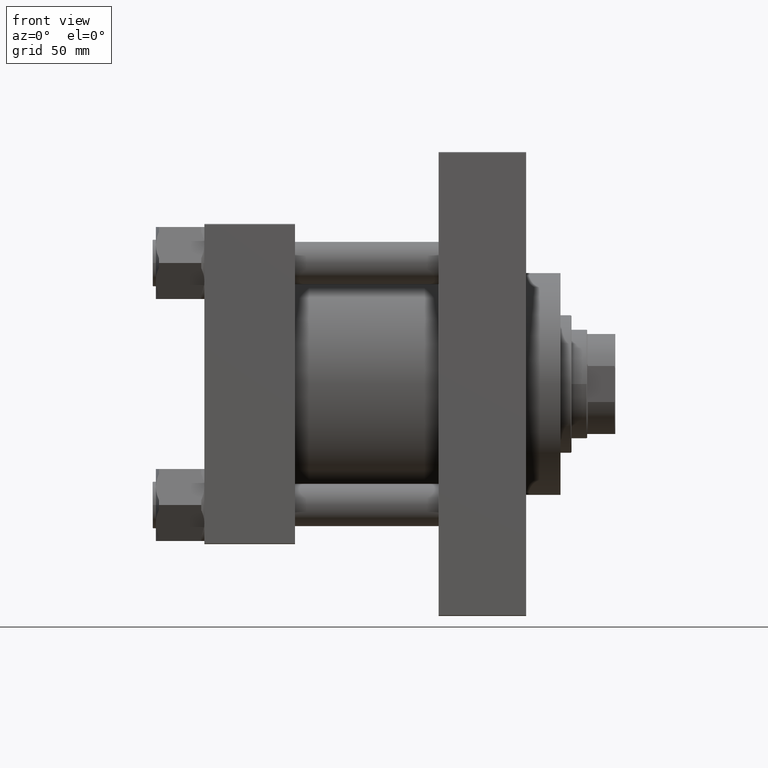
[diagram: clean part render]
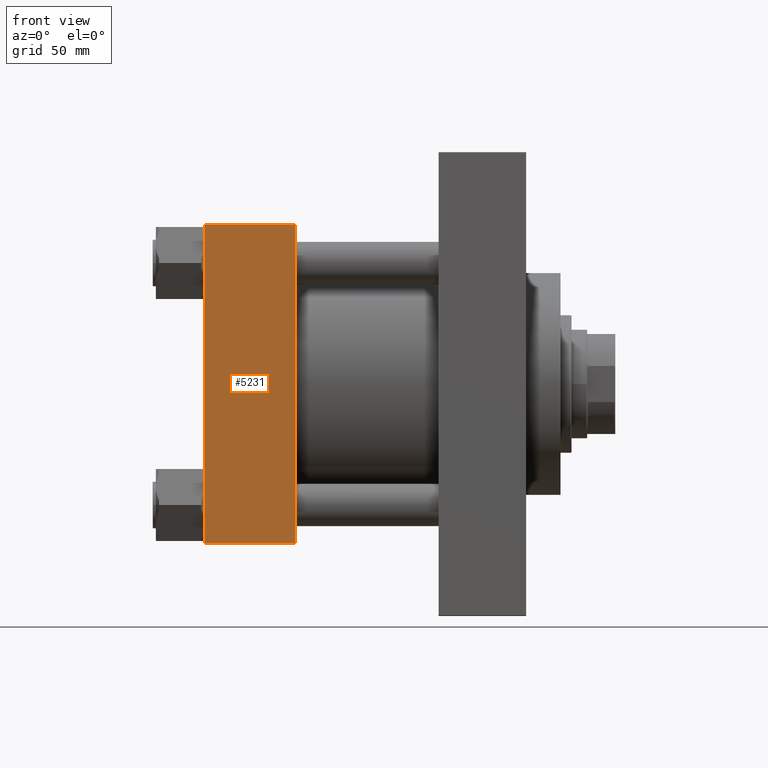
[diagram: same view with one face highlighted and labeled with its STEP entity id]
A machine part, front view. The second image highlights one B-rep face of the part: STEP entity #5231.
In plain terms, the highlighted planar face has unit normal (0, 1, -0).
Its self-contained STEP definition (entity closure, byte-faithful):
#103 = CARTESIAN_POINT ( 'NONE',  ( 58.00000000000000000, -102.5000000000000000, -101.9999999999999432 ) ) ;
#151 = CARTESIAN_POINT ( 'NONE',  ( 58.00000000000000000, -102.4999999999999716, 102.0000000000000000 ) ) ;
#1451 = LINE ( 'NONE', #103, #44485 ) ;
#2696 = CARTESIAN_POINT ( 'NONE',  ( 58.00000000000000000, -102.4999999999999716, 102.5000000000000000 ) ) ;
#4095 = CARTESIAN_POINT ( 'NONE',  ( 0.000000000000000000, -102.4999999999999716, 102.5000000000000000 ) ) ;
#4210 = VERTEX_POINT ( 'NONE', #24755 ) ;
#4345 = VERTEX_POINT ( 'NONE', #151 ) ;
#4896 = VECTOR ( 'NONE', #36647, 1000.000000000000000 ) ;
#5231 = ADVANCED_FACE ( 'NONE', ( #26884 ), #12655, .F. ) ;
#6314 = DIRECTION ( 'NONE',  ( 0.000000000000000000, -1.353930517835556973E-16, -1.000000000000000000 ) ) ;
#6329 = VECTOR ( 'NONE', #6314, 1000.000000000000000 ) ;
#6476 = ORIENTED_EDGE ( 'NONE', *, *, #14184, .T. ) ;
#8451 = VECTOR ( 'NONE', #47133, 1000.000000000000000 ) ;
#8556 = DIRECTION ( 'NONE',  ( 0.000000000000000000, 1.000000000000000000, -1.353930517835556973E-16 ) ) ;
#8772 = ORIENTED_EDGE ( 'NONE', *, *, #34276, .T. ) ;
#12655 = PLANE ( 'NONE',  #16752 ) ;
#12894 = CARTESIAN_POINT ( 'NONE',  ( 58.00000000000000000, -102.4999999999999716, 102.5000000000000000 ) ) ;
#14184 = EDGE_CURVE ( 'NONE', #4345, #45244, #25647, .T. ) ;
#14704 = LINE ( 'NONE', #4095, #4896 ) ;
#15100 = CARTESIAN_POINT ( 'NONE',  ( 58.00000000000000000, -102.5000000000000000, -101.9999999999998863 ) ) ;
#16752 = AXIS2_PLACEMENT_3D ( 'NONE', #12894, #8556, #27358 ) ;
#19739 = EDGE_CURVE ( 'NONE', #4345, #40405, #39353, .T. ) ;
#20457 = ORIENTED_EDGE ( 'NONE', *, *, #43599, .T. ) ;
#21891 = EDGE_LOOP ( 'NONE', ( #8772, #20457, #28346, #6476 ) ) ;
#22267 = DIRECTION ( 'NONE',  ( 1.000000000000000000, 0.000000000000000000, 0.000000000000000000 ) ) ;
#24755 = CARTESIAN_POINT ( 'NONE',  ( 0.000000000000000000, -102.5000000000000000, -101.9999999999998863 ) ) ;
#25647 = LINE ( 'NONE', #43257, #8451 ) ;
#26884 = FACE_OUTER_BOUND ( 'NONE', #21891, .T. ) ;
#27358 = DIRECTION ( 'NONE',  ( 0.000000000000000000, 1.353930517835556973E-16, 1.000000000000000000 ) ) ;
#28346 = ORIENTED_EDGE ( 'NONE', *, *, #19739, .F. ) ;
#34276 = EDGE_CURVE ( 'NONE', #45244, #4210, #14704, .T. ) ;
#36647 = DIRECTION ( 'NONE',  ( 0.000000000000000000, -1.353930517835556973E-16, -1.000000000000000000 ) ) ;
#37484 = CARTESIAN_POINT ( 'NONE',  ( 0.000000000000000000, -102.4999999999999716, 102.0000000000000000 ) ) ;
#39353 = LINE ( 'NONE', #2696, #6329 ) ;
#40405 = VERTEX_POINT ( 'NONE', #15100 ) ;
#43257 = CARTESIAN_POINT ( 'NONE',  ( 58.00000000000000000, -102.4999999999999716, 102.0000000000000000 ) ) ;
#43599 = EDGE_CURVE ( 'NONE', #4210, #40405, #1451, .T. ) ;
#44485 = VECTOR ( 'NONE', #22267, 1000.000000000000000 ) ;
#45244 = VERTEX_POINT ( 'NONE', #37484 ) ;
#47133 = DIRECTION ( 'NONE',  ( -1.000000000000000000, 0.000000000000000000, 0.000000000000000000 ) ) ;